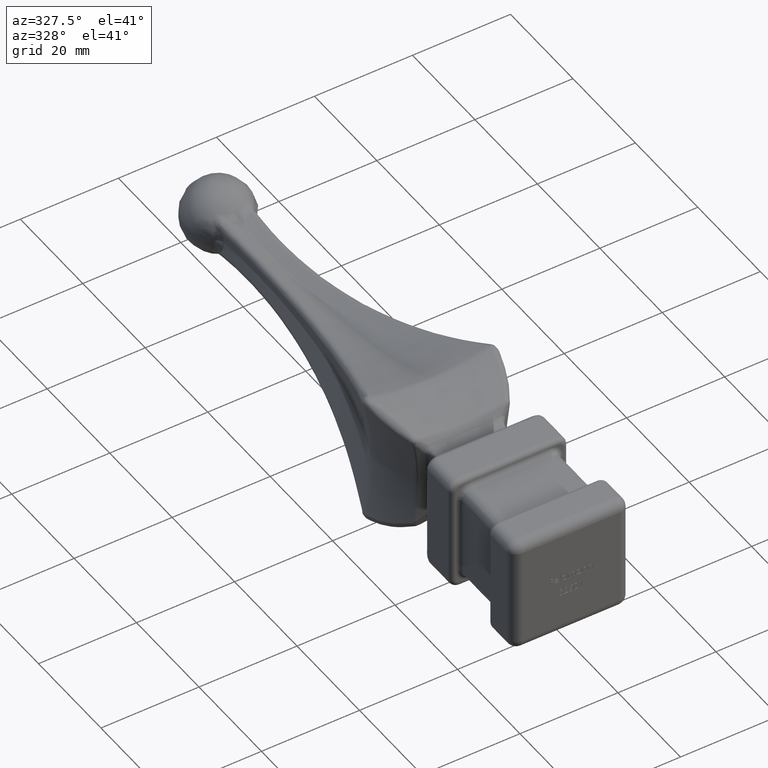
[diagram: clean part render]
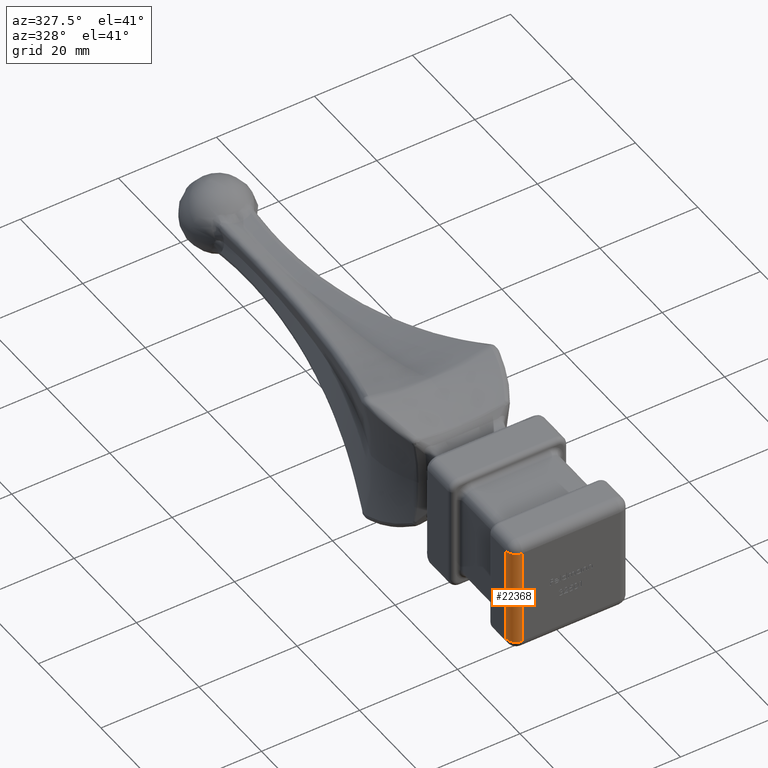
[diagram: same view with one face highlighted and labeled with its STEP entity id]
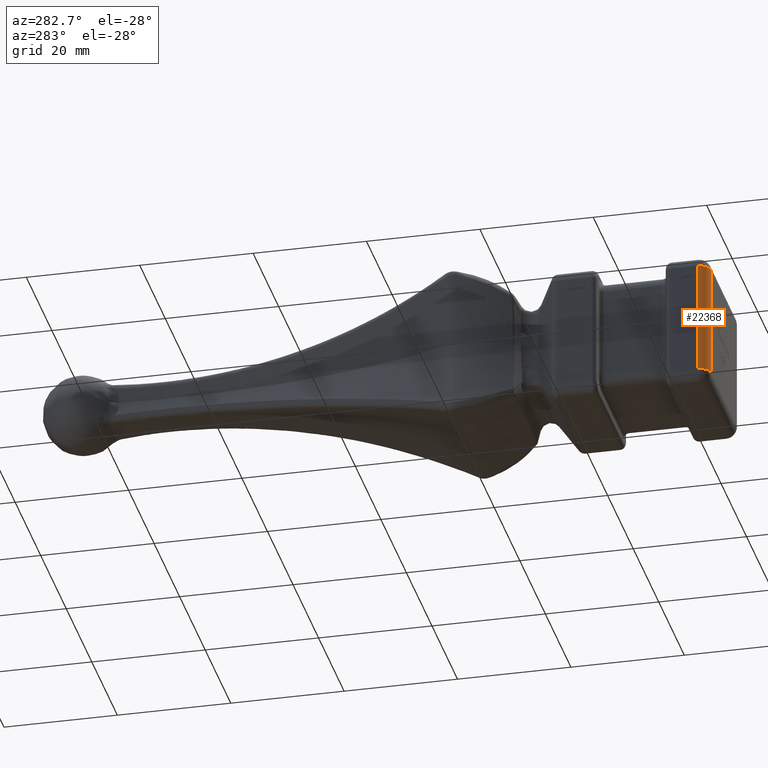
[diagram: same view with one face highlighted and labeled with its STEP entity id]
A machine part, auxiliary view. The second image highlights one B-rep face of the part: STEP entity #22368.
A second angle (auxiliary view) of the same face is appended — the face is thin or edge-on in the first view.
In plain terms, the highlighted cylindrical surface (edge-blend (fillet) strip) has radius 2 mm, axis along (0, 0, 1).
Its self-contained STEP definition (entity closure, byte-faithful):
#119 = VERTEX_POINT ( 'NONE', #21472 ) ;
#726 = ORIENTED_EDGE ( 'NONE', *, *, #3116, .T. ) ;
#1267 = LINE ( 'NONE', #1560, #20794 ) ;
#1560 = CARTESIAN_POINT ( 'NONE',  ( -12.00000000000000000, -43.00000000000000000, 10.00000000000000533 ) ) ;
#1580 = CARTESIAN_POINT ( 'NONE',  ( -10.00000000000000355, -43.00000000000000000, -9.999999999999998224 ) ) ;
#1821 = CIRCLE ( 'NONE', #15017, 2.000000000000000000 ) ;
#2730 = CARTESIAN_POINT ( 'NONE',  ( -12.00000000000000000, -43.00000000000000000, 10.00000000000000355 ) ) ;
#2754 = VERTEX_POINT ( 'NONE', #7335 ) ;
#3116 = EDGE_CURVE ( 'NONE', #2754, #19419, #1821, .T. ) ;
#3464 = DIRECTION ( 'NONE',  ( 1.734723475976806848E-16, -0.000000000000000000, 1.000000000000000000 ) ) ;
#3706 = CYLINDRICAL_SURFACE ( 'NONE', #17983, 2.000000000000000000 ) ;
#6187 = EDGE_CURVE ( 'NONE', #2754, #6941, #1267, .T. ) ;
#6941 = VERTEX_POINT ( 'NONE', #2730 ) ;
#7111 = DIRECTION ( 'NONE',  ( 1.000000000000000000, 0.000000000000000000, 0.000000000000000000 ) ) ;
#7335 = CARTESIAN_POINT ( 'NONE',  ( -12.00000000000000355, -43.00000000000000000, -9.999999999999998224 ) ) ;
#10248 = AXIS2_PLACEMENT_3D ( 'NONE', #17475, #15886, #22770 ) ;
#10381 = EDGE_CURVE ( 'NONE', #119, #19419, #18784, .T. ) ;
#11772 = CIRCLE ( 'NONE', #10248, 2.000000000000000000 ) ;
#12323 = CARTESIAN_POINT ( 'NONE',  ( -9.999999999917683624, -45.00000000000000000, -9.999999999999991118 ) ) ;
#13316 = FACE_OUTER_BOUND ( 'NONE', #20191, .T. ) ;
#13923 = DIRECTION ( 'NONE',  ( 1.000000000000000000, 0.000000000000000000, 0.000000000000000000 ) ) ;
#14621 = CARTESIAN_POINT ( 'NONE',  ( -10.00000000000000355, -45.00000000000000000, -9.999999999999998224 ) ) ;
#15017 = AXIS2_PLACEMENT_3D ( 'NONE', #21267, #17465, #13923 ) ;
#15437 = EDGE_CURVE ( 'NONE', #119, #6941, #11772, .T. ) ;
#15886 = DIRECTION ( 'NONE',  ( -0.000000000000000000, -0.000000000000000000, -1.000000000000000000 ) ) ;
#17465 = DIRECTION ( 'NONE',  ( 0.000000000000000000, 0.000000000000000000, 1.000000000000000000 ) ) ;
#17475 = CARTESIAN_POINT ( 'NONE',  ( -10.00000000000000000, -43.00000000000000000, 10.00000000000000355 ) ) ;
#17983 = AXIS2_PLACEMENT_3D ( 'NONE', #1580, #21493, #7111 ) ;
#18784 = LINE ( 'NONE', #14621, #21859 ) ;
#19419 = VERTEX_POINT ( 'NONE', #12323 ) ;
#20191 = EDGE_LOOP ( 'NONE', ( #22520, #22001, #726, #21977 ) ) ;
#20794 = VECTOR ( 'NONE', #3464, 1000.000000000000000 ) ;
#21267 = CARTESIAN_POINT ( 'NONE',  ( -10.00000000000000355, -43.00000000000000000, -9.999999999999998224 ) ) ;
#21472 = CARTESIAN_POINT ( 'NONE',  ( -10.00000000000000000, -45.00000000000000000, 10.00000000000000178 ) ) ;
#21493 = DIRECTION ( 'NONE',  ( 1.734723475976806848E-16, 0.000000000000000000, 1.000000000000000000 ) ) ;
#21859 = VECTOR ( 'NONE', #23447, 1000.000000000000000 ) ;
#21977 = ORIENTED_EDGE ( 'NONE', *, *, #10381, .F. ) ;
#22001 = ORIENTED_EDGE ( 'NONE', *, *, #6187, .F. ) ;
#22368 = ADVANCED_FACE ( 'NONE', ( #13316 ), #3706, .T. ) ;
#22520 = ORIENTED_EDGE ( 'NONE', *, *, #15437, .T. ) ;
#22770 = DIRECTION ( 'NONE',  ( -1.000000000000000000, 0.000000000000000000, 0.000000000000000000 ) ) ;
#23447 = DIRECTION ( 'NONE',  ( -1.734723475976806848E-16, 0.000000000000000000, -1.000000000000000000 ) ) ;